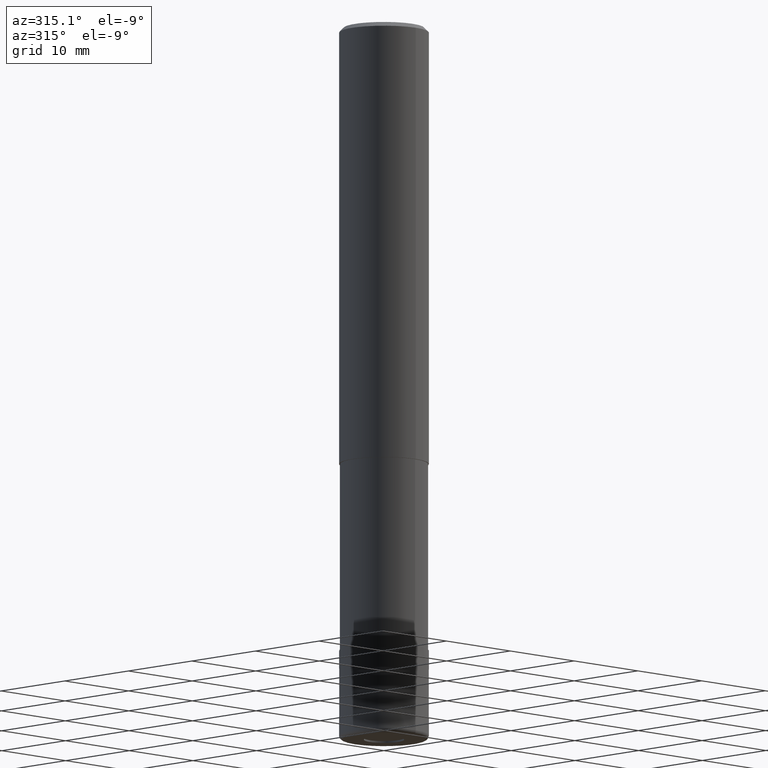
[diagram: clean part render]
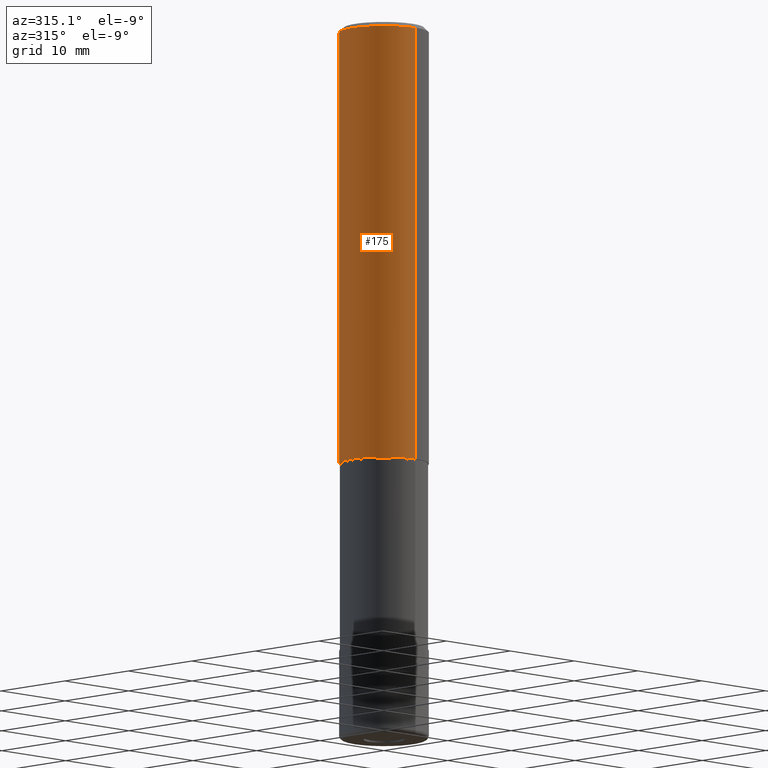
[diagram: same view with one face highlighted and labeled with its STEP entity id]
A machine part, auxiliary view. The second image highlights one B-rep face of the part: STEP entity #175.
In plain terms, the highlighted cylindrical surface (partial cylindrical patch) has radius 5 mm, axis along (-0, -0, 1).
Its self-contained STEP definition (entity closure, byte-faithful):
#145=EDGE_CURVE('',#217,#273,#335,.T.);
#155=VERTEX_POINT('',#345);
#175=ADVANCED_FACE('',(#367),#368,.T.);
#185=VERTEX_POINT('',#379);
#189=EDGE_CURVE('',#273,#155,#383,.T.);
#217=VERTEX_POINT('',#415);
#227=EDGE_CURVE('',#185,#155,#426,.T.);
#273=VERTEX_POINT('',#484);
#275=EDGE_CURVE('',#185,#217,#486,.T.);
#335=CIRCLE('',#547,5.0);
#345=CARTESIAN_POINT('',(0.0,5.0,-49.0));
#367=FACE_OUTER_BOUND('',#588,.T.);
#368=CYLINDRICAL_SURFACE('',#589,5.0);
#379=CARTESIAN_POINT('',(6.12303176911189E-016,-5.0,-49.0));
#383=LINE('',#608,#609);
#415=CARTESIAN_POINT('',(6.12303176911189E-016,-5.0,-0.5));
#426=CIRCLE('',#666,5.0);
#484=CARTESIAN_POINT('',(0.0,5.0,-0.5));
#486=LINE('',#735,#736);
#547=AXIS2_PLACEMENT_3D('',#787,#788,#789);
#588=EDGE_LOOP('',(#829,#830,#831,#832));
#589=AXIS2_PLACEMENT_3D('',#833,#834,#835);
#608=CARTESIAN_POINT('',(-6.12303176911189E-016,5.0,-24.75));
#609=VECTOR('',#848,1.0);
#666=AXIS2_PLACEMENT_3D('',#902,#903,#904);
#735=CARTESIAN_POINT('',(6.12303176911189E-016,-5.0,-24.75));
#736=VECTOR('',#991,1.0);
#787=CARTESIAN_POINT('',(0.0,0.0,-0.5));
#788=DIRECTION('',(0.0,0.0,-1.0));
#789=DIRECTION('',(0.0,1.0,0.0));
#829=ORIENTED_EDGE('',*,*,#189,.T.);
#830=ORIENTED_EDGE('',*,*,#227,.F.);
#831=ORIENTED_EDGE('',*,*,#275,.T.);
#832=ORIENTED_EDGE('',*,*,#145,.T.);
#833=CARTESIAN_POINT('',(0.0,0.0,-24.75));
#834=DIRECTION('',(-0.0,-0.0,1.0));
#835=DIRECTION('',(0.0,1.0,0.0));
#848=DIRECTION('',(0.0,0.0,-1.0));
#902=CARTESIAN_POINT('',(0.0,0.0,-49.0));
#903=DIRECTION('',(0.0,0.0,-1.0));
#904=DIRECTION('',(0.0,1.0,0.0));
#991=DIRECTION('',(-0.0,-0.0,1.0));